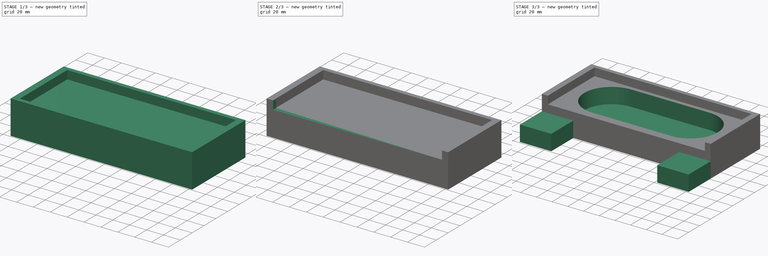
[diagram: build sequence overview — one tinted view per stage of 3, left to right]
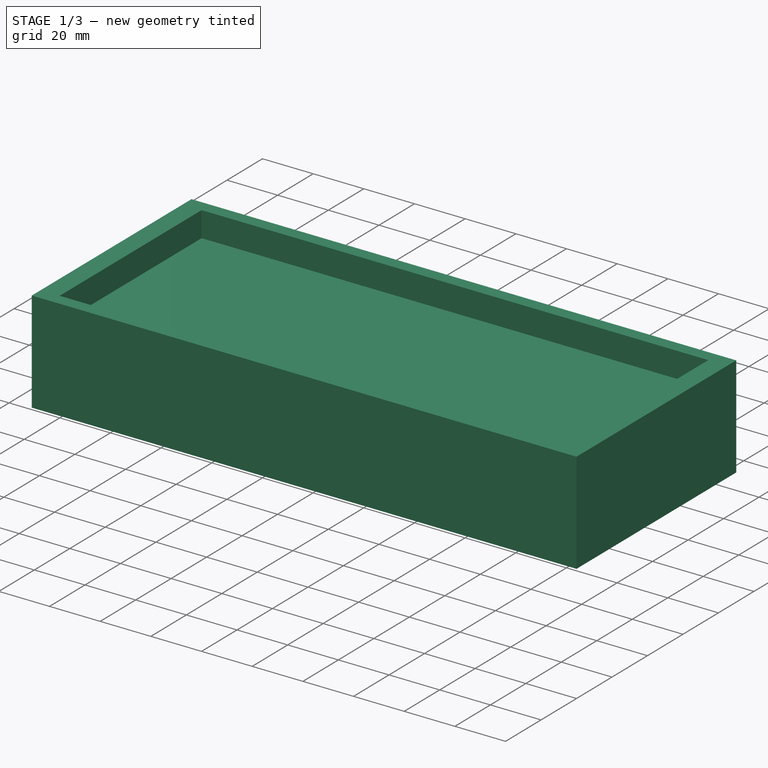
[diagram: stage 1 of 3 — iso view after this stage's code; geometry added in this stage tinted green]
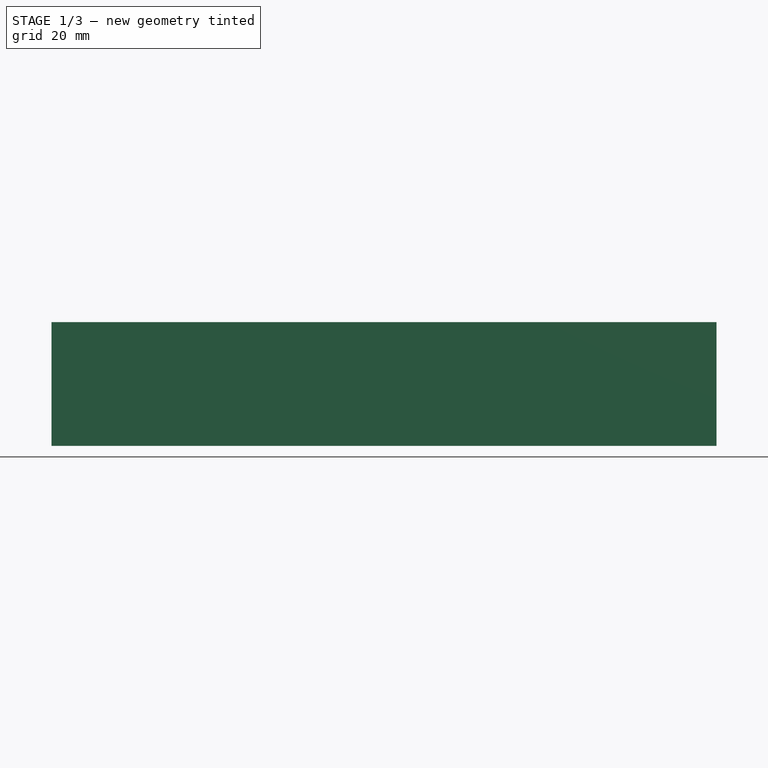
[diagram: stage 1 of 3 — front view after this stage's code; geometry added in this stage tinted green]
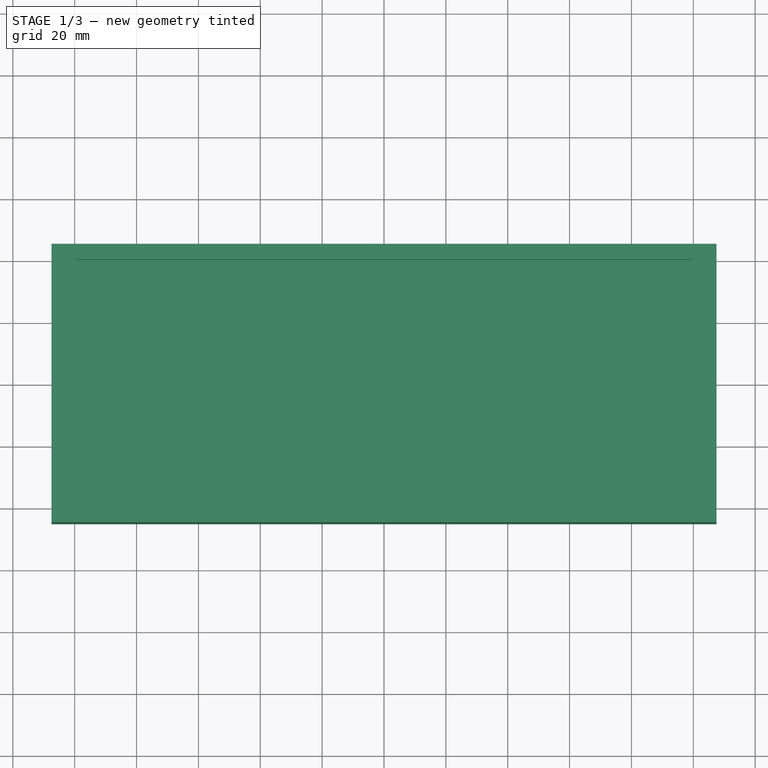
[diagram: stage 1 of 3 — top view after this stage's code; geometry added in this stage tinted green]
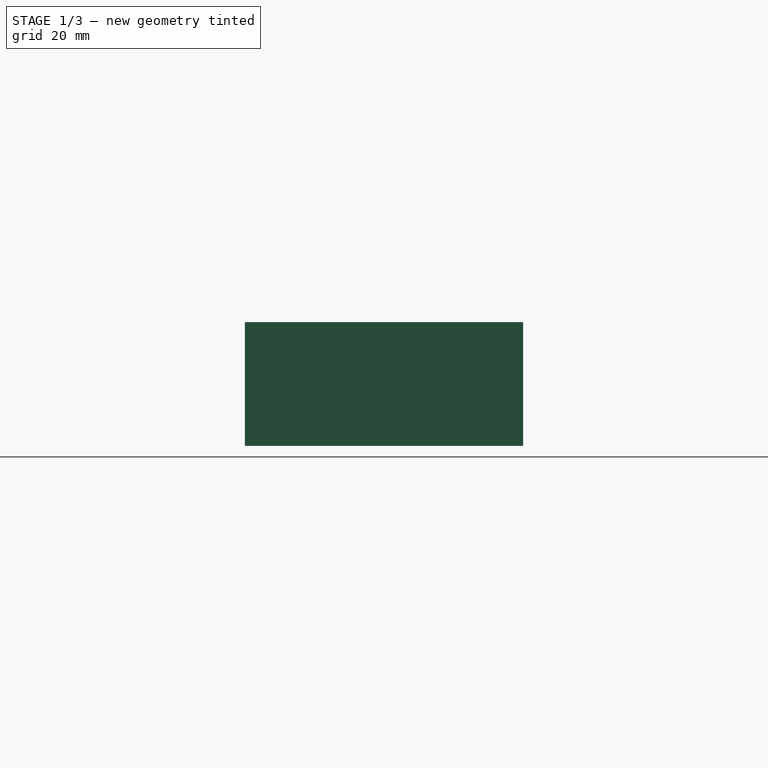
[diagram: stage 1 of 3 — right view after this stage's code; geometry added in this stage tinted green]
FCSTD DOCUMENT  (FreeCAD 0.21R33771 (Git))
Label: 3d model
License: All rights reserved
LicenseURL: https://en.wikipedia.org/wiki/All_rights_reserved
objects: Sketcher::SketchObject×6, PartDesign::Pocket×3, PartDesign::Pad×2, PartDesign::Body×1
note: 17 computed .brp shape members not serialized (recipe doc carries the construction recipe); baked Part::Feature solids carry a one-line shape summary decoded from their .brp

FEATURE [Sketcher::SketchObject] Sketch
  FullyConstrained = true
  MapMode = 5
  Support = -> [XY_Plane]
  sketch-geometry (4):
    g0: LineSegment StartX=-107.5 StartY=45 StartZ=0 EndX=107.5 EndY=45 EndZ=0
    g1: LineSegment StartX=107.5 StartY=45 StartZ=0 EndX=107.5 EndY=-45 EndZ=0
    g2: LineSegment StartX=107.5 StartY=-45 StartZ=0 EndX=-107.5 EndY=-45 EndZ=0
    g3: LineSegment StartX=-107.5 StartY=-45 StartZ=0 EndX=-107.5 EndY=45 EndZ=0
  constraints (12):
    c: Coincident(g0,g1)
    c: Coincident(g1,g2)
    c: Coincident(g2,g3)
    c: Coincident(g3,g0)
    c: Horizontal(g0)
    c: Horizontal(g2)
    c: Vertical(g1)
    c: Vertical(g3)
    c: DistanceX(g0,g0) = 215
    c: DistanceY(g1,g1) = 90
    c: DistanceY(g1,g-1) = 45
    c: DistanceX(g0,g-1) = 107.5
FEATURE [PartDesign::Pad] Pad
  Direction = (0,0,1)
  Length = 40
  Length2 = 10
  Profile = -> Sketch
  ReferenceAxis = -> Sketch [N_Axis]
  Type = 0
FEATURE [Sketcher::SketchObject] Sketch001
  FullyConstrained = true
  MapMode = 5
  Placement = pos=(0,0,40) rot=(0,0,1;0rad)
  Support = -> [Pad]
  sketch-geometry (4):
    g0: LineSegment StartX=-100 StartY=40 StartZ=0 EndX=100 EndY=40 EndZ=0
    g1: LineSegment StartX=100 StartY=40 StartZ=0 EndX=100 EndY=-40 EndZ=0
    g2: LineSegment StartX=100 StartY=-40 StartZ=0 EndX=-100 EndY=-40 EndZ=0
    g3: LineSegment StartX=-100 StartY=-40 StartZ=0 EndX=-100 EndY=40 EndZ=0
  constraints (12):
    c: Coincident(g0,g1)
    c: Coincident(g1,g2)
    c: Coincident(g2,g3)
    c: Coincident(g3,g0)
    c: Horizontal(g0)
    c: Horizontal(g2)
    c: Vertical(g1)
    c: Vertical(g3)
    c: DistanceX(g0,g0) = 200
    c: DistanceY(g1,g1) = 80
    c: DistanceX(g-1,g0) = 100
    c: DistanceY(g1,g-1) = 40
FEATURE [PartDesign::Pocket] Pocket
  BaseFeature = -> Pad
  Direction = (0,0,-1)
  Length = 10
  Length2 = 5
  Profile = -> Sketch001
  ReferenceAxis = -> Sketch001 [N_Axis]
  Type = 0
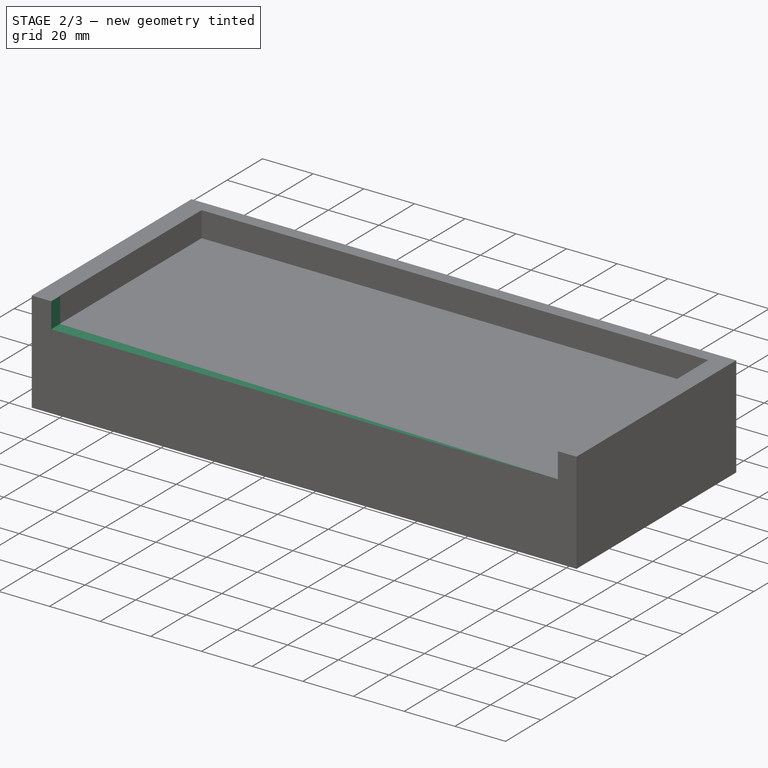
[diagram: stage 2 of 3 — iso view after this stage's code; geometry added in this stage tinted green]
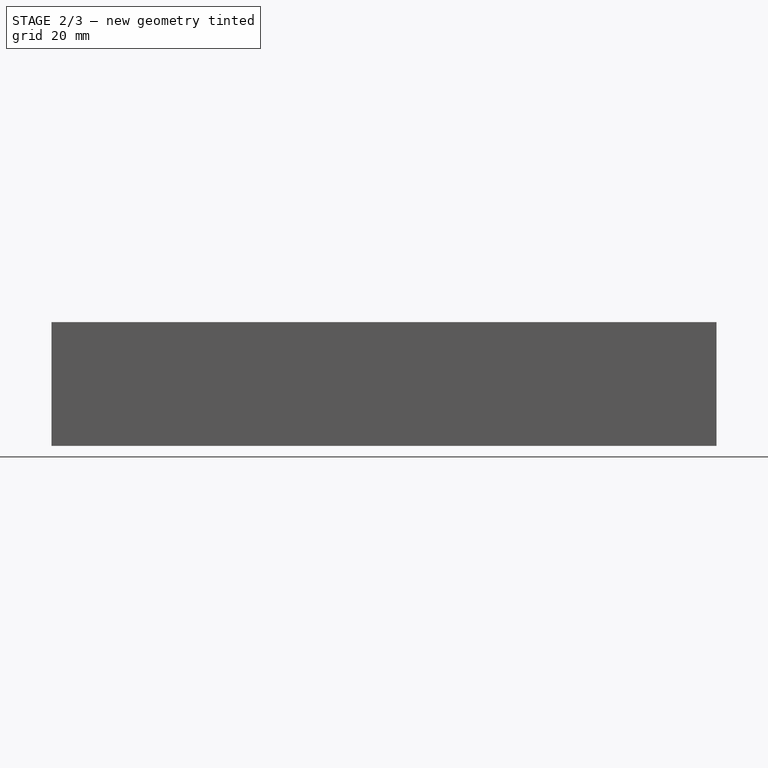
[diagram: stage 2 of 3 — front view after this stage's code; geometry added in this stage tinted green]
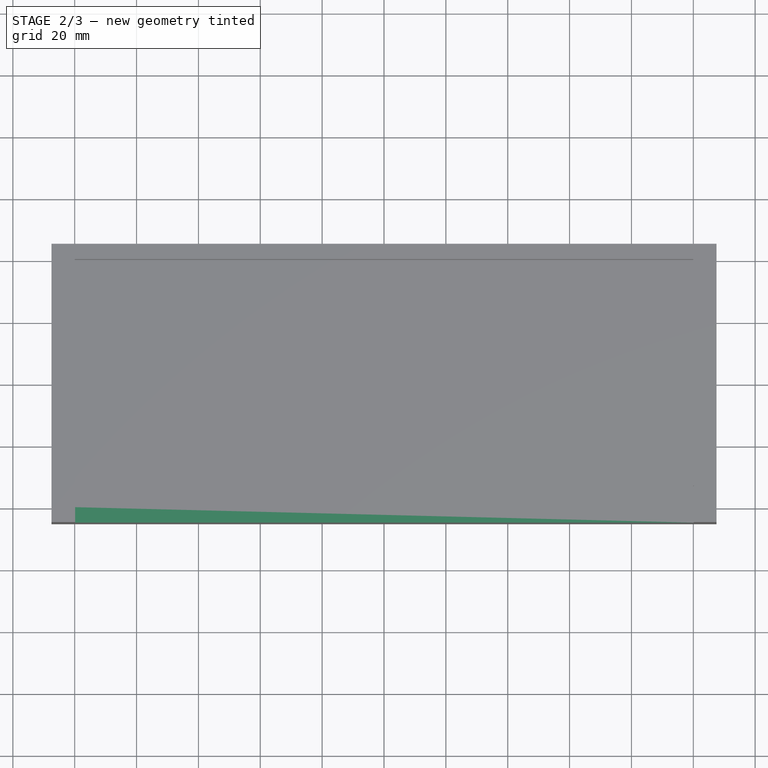
[diagram: stage 2 of 3 — top view after this stage's code; geometry added in this stage tinted green]
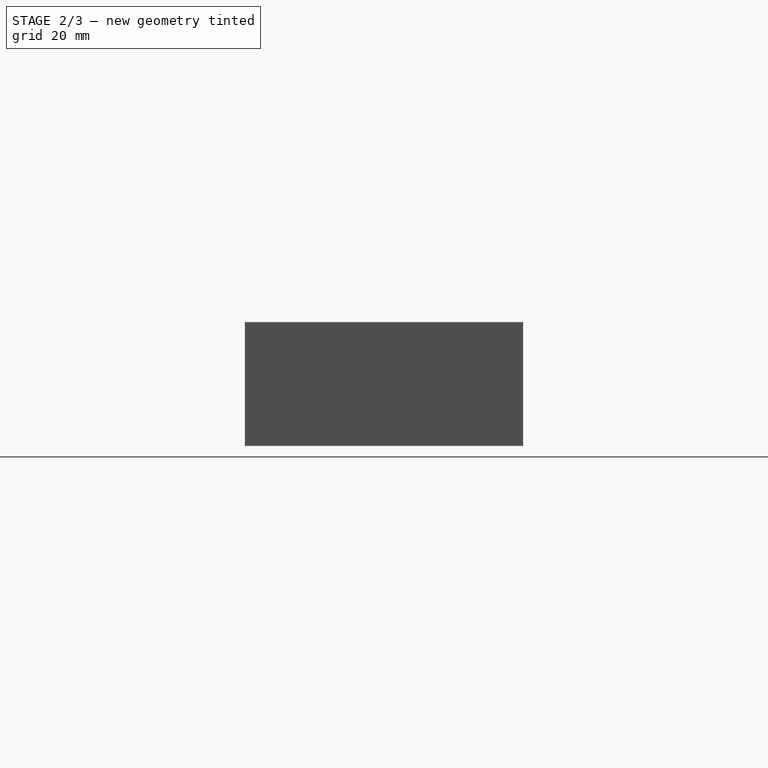
[diagram: stage 2 of 3 — right view after this stage's code; geometry added in this stage tinted green]
FEATURE [Sketcher::SketchObject] Sketch002
  FullyConstrained = false
  MapMode = 5
  Placement = pos=(0,0,40) rot=(0,0,1;0rad)
  Support = -> [Pocket]
  sketch-geometry (4):
    g0: LineSegment StartX=-99.8482 StartY=-33.212 StartZ=0 EndX=100.152 EndY=-33.212 EndZ=0
    g1: LineSegment StartX=100.152 StartY=-33.212 StartZ=0 EndX=100.152 EndY=-47.0572 EndZ=0
    g2: LineSegment StartX=100.152 StartY=-47.0572 StartZ=0 EndX=-99.8482 EndY=-47.0572 EndZ=0
    g3: LineSegment StartX=-99.8482 StartY=-47.0572 StartZ=0 EndX=-99.8482 EndY=-33.212 EndZ=0
  constraints (9):
    c: Coincident(g0,g1)
    c: Coincident(g1,g2)
    c: Coincident(g2,g3)
    c: Coincident(g3,g0)
    c: Horizontal(g0)
    c: Horizontal(g2)
    c: Vertical(g1)
    c: Vertical(g3)
    c: DistanceX(g0,g0) = 200
FEATURE [PartDesign::Pocket] Pocket001
  BaseFeature = -> Pocket
  Direction = (0,0,-1)
  Length = 10
  Length2 = 5
  Profile = -> Sketch002
  ReferenceAxis = -> Sketch002 [N_Axis]
  Refine = true
  Type = 0
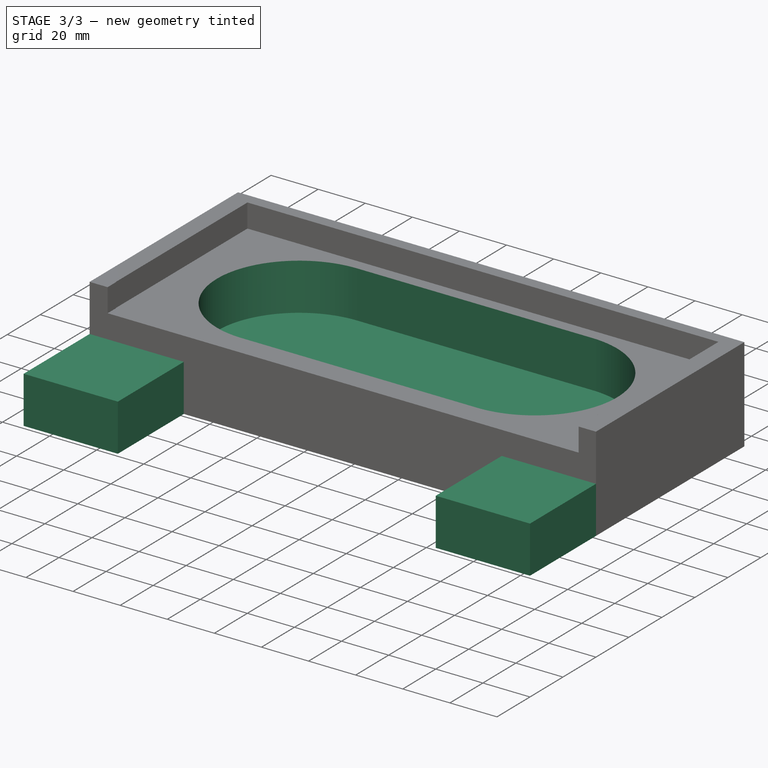
[diagram: stage 3 of 3 — iso view after this stage's code; geometry added in this stage tinted green]
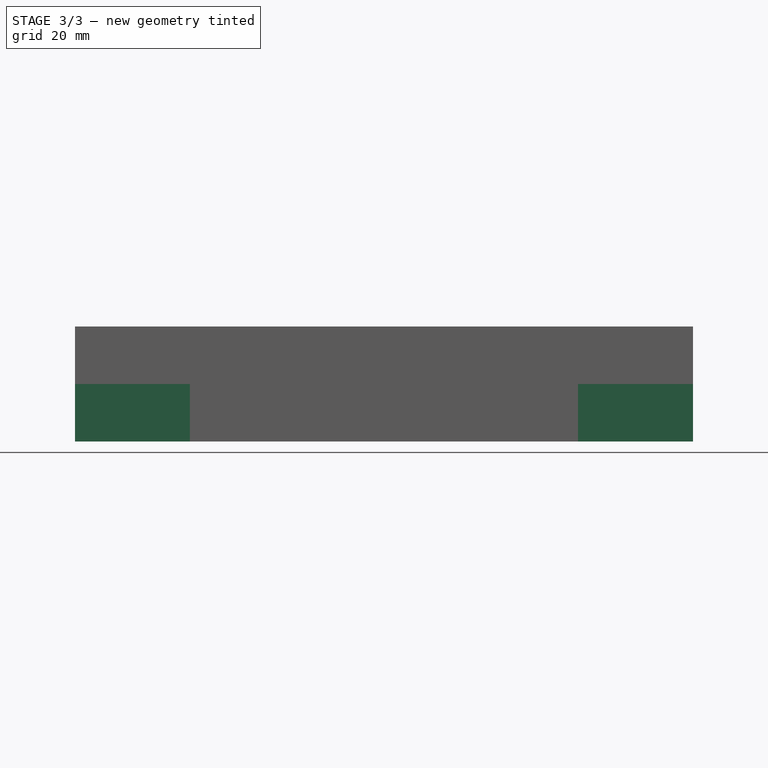
[diagram: stage 3 of 3 — front view after this stage's code; geometry added in this stage tinted green]
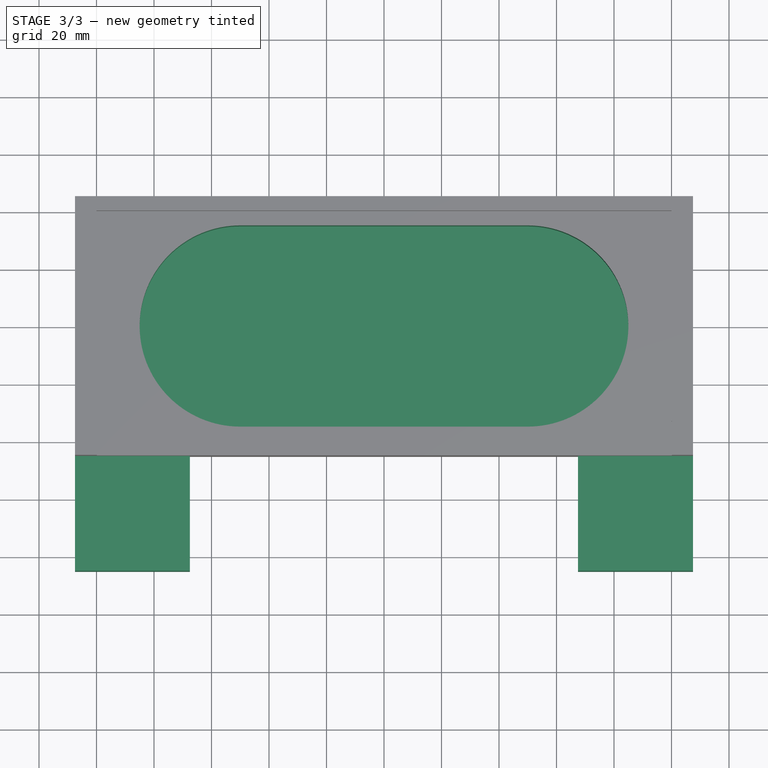
[diagram: stage 3 of 3 — top view after this stage's code; geometry added in this stage tinted green]
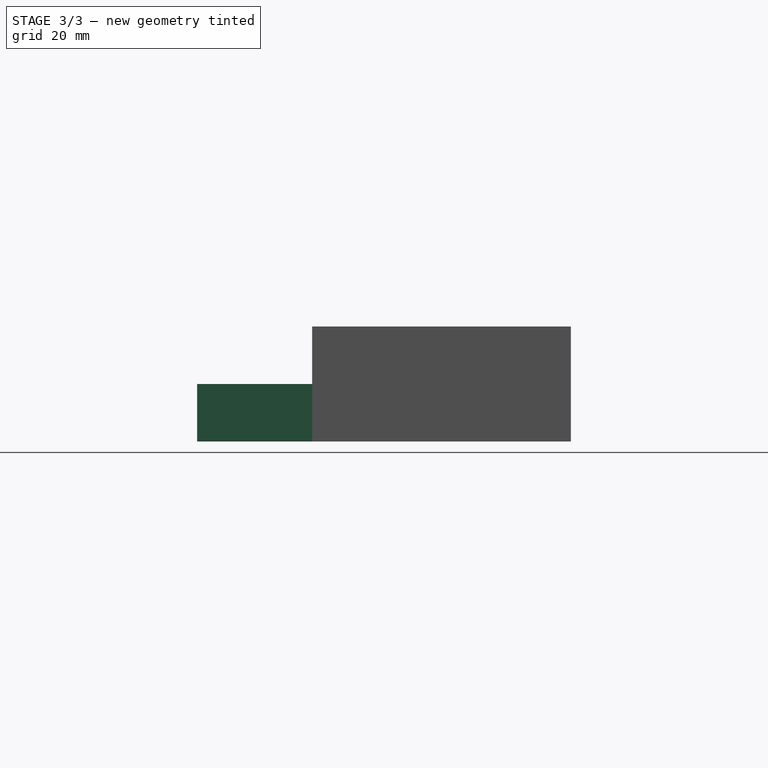
[diagram: stage 3 of 3 — right view after this stage's code; geometry added in this stage tinted green]
FEATURE [Sketcher::SketchObject] Sketch003
  FullyConstrained = true
  MapMode = 5
  Placement = pos=(0,-1.9e-15,30) rot=(0,0,1;0rad)
  Support = -> [Pocket001]
  sketch-geometry (4):
    g0: ArcOfCircle CenterX=-50 CenterY=-3.6e-15 CenterZ=0 NormalX=0 NormalY=0 NormalZ=1 AngleXU=0 Radius=35 StartAngle=1.5708 EndAngle=4.71239
    g1: ArcOfCircle CenterX=50 CenterY=1.30287e-11 CenterZ=0 NormalX=0 NormalY=0 NormalZ=1 AngleXU=0 Radius=35 StartAngle=4.71239 EndAngle=7.85398
    g2: LineSegment StartX=-50 StartY=-35 StartZ=0 EndX=50 EndY=-35 EndZ=0
    g3: LineSegment StartX=50 StartY=35 StartZ=0 EndX=-50 EndY=35 EndZ=0
  constraints (10):
    c: Tangent(g0,g2) = -1.5708
    c: Tangent(g2,g1) = -1.5708
    c: Tangent(g1,g3) = -1.5708
    c: Tangent(g3,g0) = -1.5708
    c: Equal(g0,g1)
    c: Horizontal(g2)
    c: DistanceX(g3,g3) = 100
    c: DistanceX(g-1,g1) = 50
    c: DistanceY(g0,g0) = 35
    c: DistanceY(g0,g-1) = 35
FEATURE [PartDesign::Pocket] Pocket002
  BaseFeature = -> Pocket001
  Direction = (0,1e-16,-1)
  Length = 20
  Length2 = 5
  Profile = -> Sketch003
  ReferenceAxis = -> Sketch003 [N_Axis]
  Type = 0
FEATURE [Sketcher::SketchObject] Sketch004
  ExternalGeometry = -> [Pocket002]
  FullyConstrained = true
  MapMode = 5
  Placement = pos=(0,-45,0) rot=(1,0,0;1.5708rad)
  Support = -> [Pocket002]
  sketch-geometry (8):
    g0: LineSegment StartX=-107.5 StartY=20 StartZ=0 EndX=-67.5 EndY=20 EndZ=0
    g1: LineSegment StartX=-67.5 StartY=20 StartZ=0 EndX=-67.5 EndY=0 EndZ=0
    g2: LineSegment StartX=-67.5 StartY=0 StartZ=0 EndX=-107.5 EndY=0 EndZ=0
    g3: LineSegment StartX=-107.5 StartY=0 StartZ=0 EndX=-107.5 EndY=20 EndZ=0
    g4: LineSegment StartX=67.5 StartY=20 StartZ=0 EndX=107.5 EndY=20 EndZ=0
    g5: LineSegment StartX=107.5 StartY=20 StartZ=0 EndX=107.5 EndY=0 EndZ=0
    g6: LineSegment StartX=107.5 StartY=0 StartZ=0 EndX=67.5 EndY=0 EndZ=0
    g7: LineSegment StartX=67.5 StartY=0 StartZ=0 EndX=67.5 EndY=20 EndZ=0
  constraints (24):
    c: Coincident(g0,g1)
    c: Coincident(g1,g2)
    c: Coincident(g2,g3)
    c: Coincident(g3,g0)
    c: Horizontal(g0)
    c: Horizontal(g2)
    c: Vertical(g1)
    c: Vertical(g3)
    c: DistanceX(g0,g0) = 40
    c: DistanceY(g1,g1) = 20
    c: DistanceX(g-3,g2) = 0
    c: DistanceY(g-3,g2) = 0
    c: Coincident(g4,g5)
    c: Coincident(g5,g6)
    c: Coincident(g6,g7)
    c: Coincident(g7,g4)
    c: Horizontal(g4)
    c: Horizontal(g6)
    c: Vertical(g5)
    c: Vertical(g7)
    c: DistanceX(g4,g4) = 40
    c: DistanceY(g7,g7) = 20
    c: DistanceX(g5,g-4) = 0
    c: DistanceY(g-4,g5) = 0
FEATURE [PartDesign::Pad] Pad001
  BaseFeature = -> Pocket002
  Direction = (0,-1,2e-16)
  Length = 40
  Length2 = 10
  Profile = -> Sketch004
  ReferenceAxis = -> Sketch004 [N_Axis]
  Type = 0
FEATURE [Sketcher::SketchObject] Sketch005
  ExternalGeometry = -> [Pad001]
  FullyConstrained = true
  MapMode = 5
  Placement = pos=(0,4.4e-15,20) rot=(0,0,1;0rad)
  Support = -> [Pad001]
  sketch-geometry (2):
    g0: Circle CenterX=-77.5 CenterY=-75 CenterZ=0 NormalX=0 NormalY=0 NormalZ=1 AngleXU=0 Radius=2.5
    g1: Circle CenterX=77.5 CenterY=-75 CenterZ=0 NormalX=0 NormalY=0 NormalZ=1 AngleXU=0 Radius=2.5
  constraints (6):
    c: DistanceY(g-3,g0) = 10
    c: DistanceX(g0,g-3) = 10
    c: DistanceX(g-4,g1) = 10
    c: DistanceY(g-4,g1) = 10
    c: Diameter(g0) = 5
    c: Diameter(g1) = 5
FEATURE [PartDesign::Body] Body
  Group = -> [Sketch,Pad,Sketch001,Pocket,Sketch002,Pocket001,Sketch003,Pocket002,Sketch004,Pad001,Sketch005]
  Origin = -> Origin
  Tip = -> Pad001
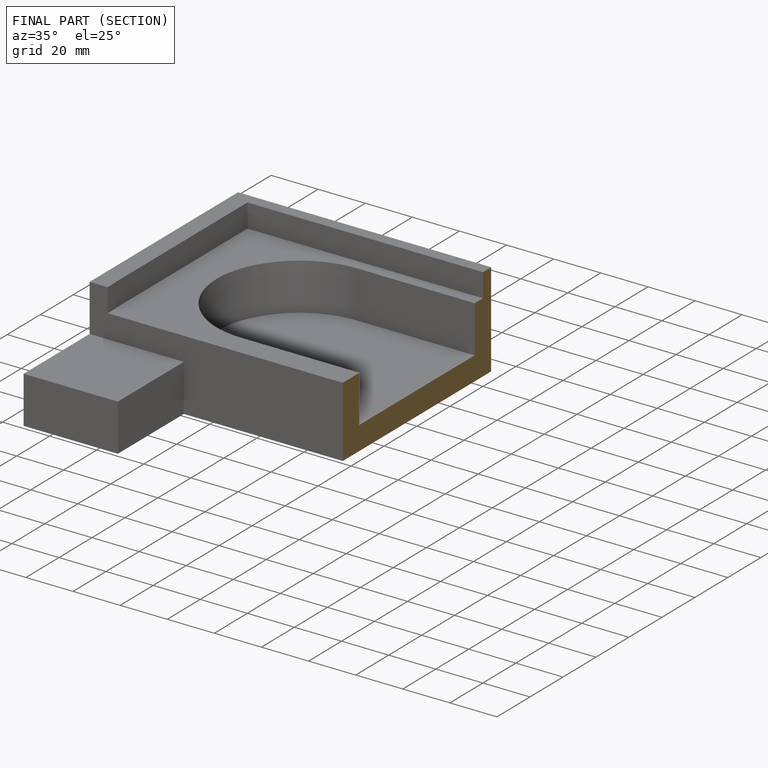
[diagram: finished part — half-section view (interior)]
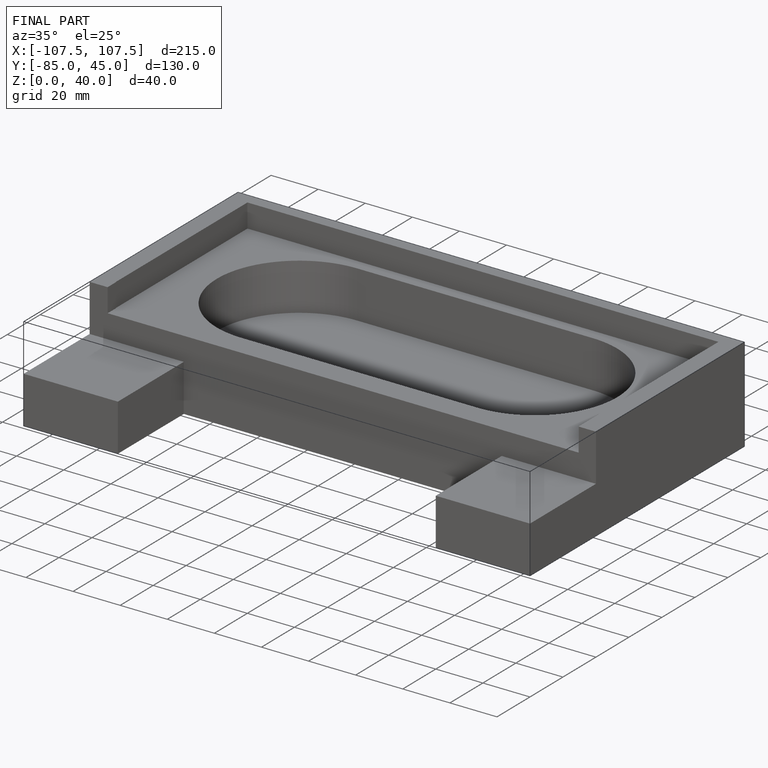
[diagram: finished part — iso view with bounding-box wireframe]
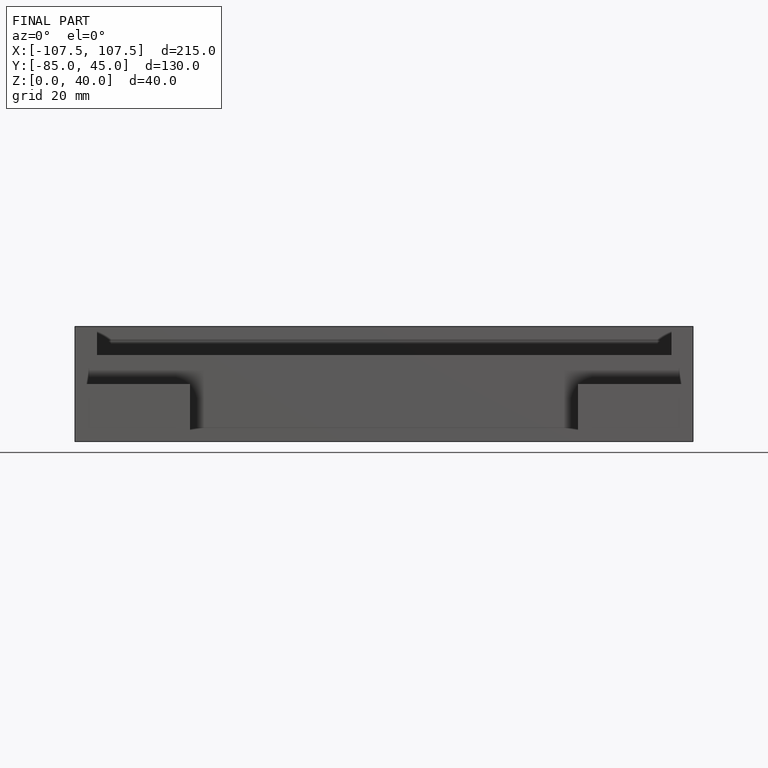
[diagram: finished part — front view with bounding-box wireframe]
